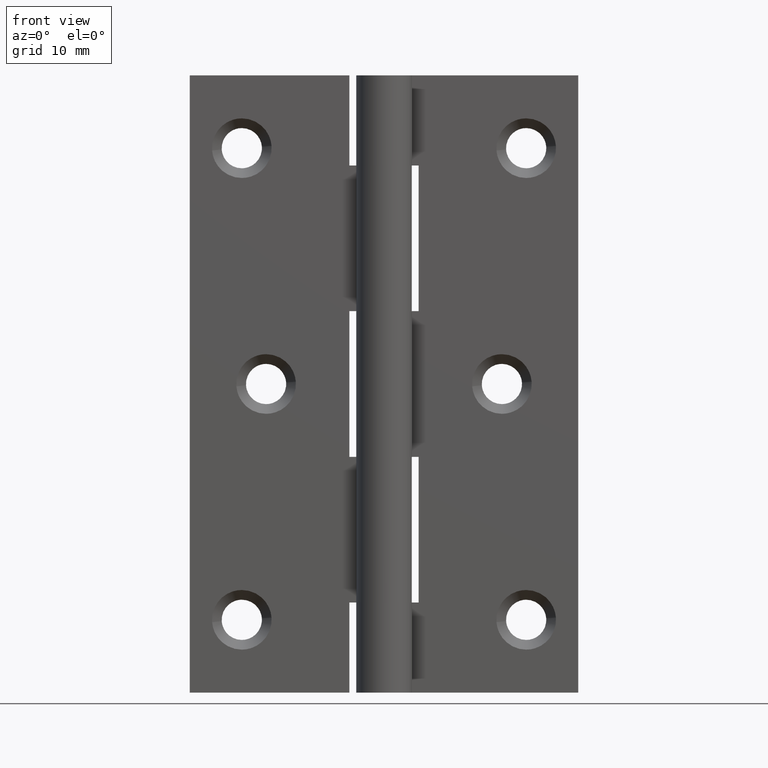
[diagram: clean part render]
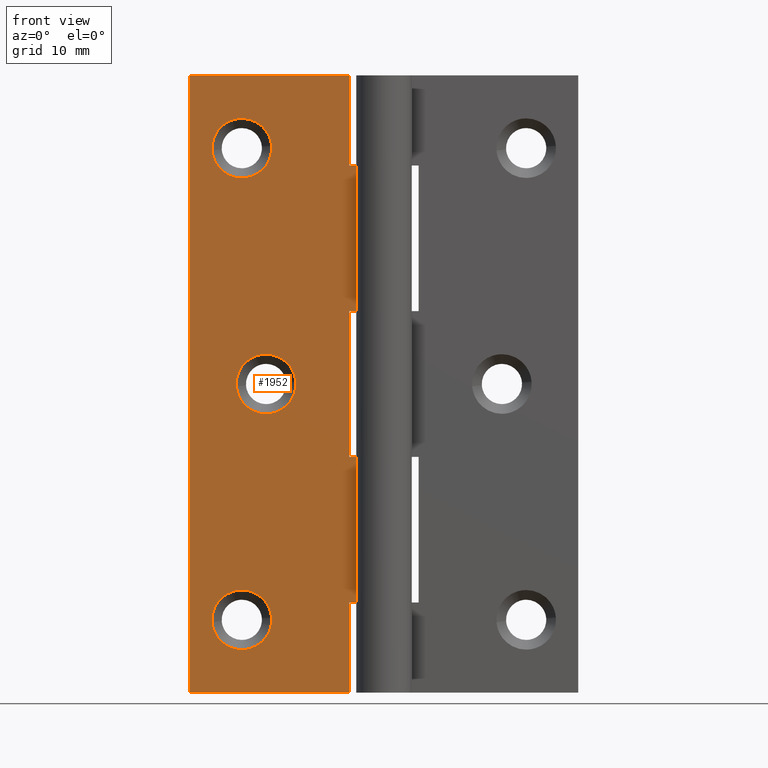
[diagram: same view with one face highlighted and labeled with its STEP entity id]
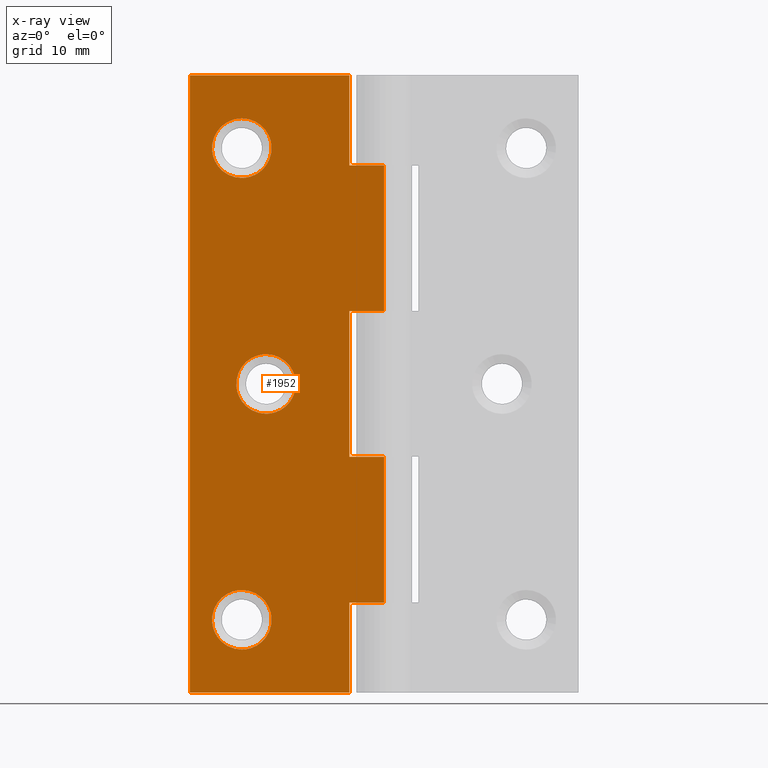
[diagram: x-ray of the same camera — body ghosted, the highlighted face saturated]
A machine part, front view. The second image highlights one B-rep face of the part: STEP entity #1952.
The next image is the same camera in x-ray: the body ghosted, the highlighted face saturated — about 0% of this face is hidden behind the body in this view.
In plain terms, the highlighted face is a freeform B-spline surface patch.
Its self-contained STEP definition (entity closure, byte-faithful):
#515=CARTESIAN_POINT('',(-16.213255453017641,2.499999999884916,78.837382113450772));
#516=VERTEX_POINT('',#515);
#522=CARTESIAN_POINT('',(-20.500000000000000,2.500000000000000,82.800008011920937));
#523=VERTEX_POINT('',#522);
#524=CARTESIAN_POINT('',(-20.500000000000000,2.500000000000000,82.800008011920937));
#525=CARTESIAN_POINT('',(-16.525120876481001,2.500000000000000,82.800008011920937));
#526=CARTESIAN_POINT('',(-16.213255453017638,2.499999999884916,78.837382113450772));
#534=(BOUNDED_CURVE()B_SPLINE_CURVE(2,(#524,#525,#526),.UNSPECIFIED.,.F.,.U.)B_SPLINE_CURVE_WITH_KNOTS((3,3),(0.0,0.236331300562649),.UNSPECIFIED.)CURVE()GEOMETRIC_REPRESENTATION_ITEM()RATIONAL_B_SPLINE_CURVE((1.0,0.723120658687345,0.969723356025484))REPRESENTATION_ITEM(''));
#535=EDGE_CURVE('',#523,#516,#534,.T.);
#537=CARTESIAN_POINT('',(-24.786744546982359,2.499999999884916,78.162633886549202));
#538=VERTEX_POINT('',#537);
#539=CARTESIAN_POINT('',(-24.786744546982359,2.499999999884916,78.162633886549202));
#540=CARTESIAN_POINT('',(-24.800000011920933,2.500000000000000,78.331060538517860));
#541=CARTESIAN_POINT('',(-24.800000011920929,2.500000000000000,78.500007999999994));
#542=CARTESIAN_POINT('',(-24.800000011920929,2.500000000000000,82.800008011920923));
#543=CARTESIAN_POINT('',(-20.500000000000000,2.500000000000000,82.800008011920937));
#551=(BOUNDED_CURVE()B_SPLINE_CURVE(2,(#539,#540,#541,#542,#543),.UNSPECIFIED.,.F.,.U.)B_SPLINE_CURVE_WITH_KNOTS((3,2,3),(0.736331300562649,0.750000000000000,1.0),.UNSPECIFIED.)CURVE()GEOMETRIC_REPRESENTATION_ITEM()RATIONAL_B_SPLINE_CURVE((0.969723356025484,0.983986122499202,1.0,0.707106781186548,1.0))REPRESENTATION_ITEM(''));
#552=EDGE_CURVE('',#538,#523,#551,.T.);
#589=CARTESIAN_POINT('',(-20.500000000000000,2.500000000000000,74.200007988079065));
#590=VERTEX_POINT('',#589);
#591=CARTESIAN_POINT('',(-20.500000000000000,2.500000000000000,74.200007988079065));
#592=CARTESIAN_POINT('',(-24.474879123519010,2.500000000000000,74.200007988079065));
#593=CARTESIAN_POINT('',(-24.786744546982366,2.499999999884915,78.162633886549202));
#601=(BOUNDED_CURVE()B_SPLINE_CURVE(2,(#591,#592,#593),.UNSPECIFIED.,.F.,.U.)B_SPLINE_CURVE_WITH_KNOTS((3,3),(0.500000000000000,0.736331300562649),.UNSPECIFIED.)CURVE()GEOMETRIC_REPRESENTATION_ITEM()RATIONAL_B_SPLINE_CURVE((1.0,0.723120658687345,0.969723356025485))REPRESENTATION_ITEM(''));
#602=EDGE_CURVE('',#590,#538,#601,.T.);
#604=CARTESIAN_POINT('',(-16.213255453017638,2.499999999884916,78.837382113450772));
#605=CARTESIAN_POINT('',(-16.199999988079071,2.500000000000000,78.668955461482128));
#606=CARTESIAN_POINT('',(-16.199999988079071,2.500000000000000,78.500007999999994));
#607=CARTESIAN_POINT('',(-16.199999988079067,2.500000000000000,74.200007988079051));
#608=CARTESIAN_POINT('',(-20.500000000000000,2.500000000000000,74.200007988079065));
#616=(BOUNDED_CURVE()B_SPLINE_CURVE(2,(#604,#605,#606,#607,#608),.UNSPECIFIED.,.F.,.U.)B_SPLINE_CURVE_WITH_KNOTS((3,2,3),(0.236331300562649,0.250000000000000,0.500000000000000),.UNSPECIFIED.)CURVE()GEOMETRIC_REPRESENTATION_ITEM()RATIONAL_B_SPLINE_CURVE((0.969723356025484,0.983986122499202,1.0,0.707106781186548,1.0))REPRESENTATION_ITEM(''));
#617=EDGE_CURVE('',#516,#590,#616,.T.);
#843=CARTESIAN_POINT('',(-12.713255453017640,2.499999999884916,44.837382113450772));
#844=VERTEX_POINT('',#843);
#850=CARTESIAN_POINT('',(-17.0,2.500000000000000,48.800008011920930));
#851=VERTEX_POINT('',#850);
#852=CARTESIAN_POINT('',(-17.0,2.500000000000000,48.800008011920930));
#853=CARTESIAN_POINT('',(-13.025120876480983,2.500000000000000,48.800008011920930));
#854=CARTESIAN_POINT('',(-12.713255453017640,2.499999999884916,44.837382113450779));
#862=(BOUNDED_CURVE()B_SPLINE_CURVE(2,(#852,#853,#854),.UNSPECIFIED.,.F.,.U.)B_SPLINE_CURVE_WITH_KNOTS((3,3),(0.0,0.236331300562649),.UNSPECIFIED.)CURVE()GEOMETRIC_REPRESENTATION_ITEM()RATIONAL_B_SPLINE_CURVE((1.0,0.723120658687345,0.969723356025485))REPRESENTATION_ITEM(''));
#863=EDGE_CURVE('',#851,#844,#862,.T.);
#865=CARTESIAN_POINT('',(-21.286744546982359,2.499999999884917,44.162633886549223));
#866=VERTEX_POINT('',#865);
#867=CARTESIAN_POINT('',(-21.286744546982359,2.499999999884917,44.162633886549223));
#868=CARTESIAN_POINT('',(-21.300000011920933,2.500000000000000,44.331060538517875));
#869=CARTESIAN_POINT('',(-21.300000011920929,2.500000000000000,44.500008000000001));
#870=CARTESIAN_POINT('',(-21.300000011920940,2.500000000000000,48.800008011920923));
#871=CARTESIAN_POINT('',(-17.0,2.500000000000000,48.800008011920930));
#879=(BOUNDED_CURVE()B_SPLINE_CURVE(2,(#867,#868,#869,#870,#871),.UNSPECIFIED.,.F.,.U.)B_SPLINE_CURVE_WITH_KNOTS((3,2,3),(0.736331300562649,0.750000000000000,1.0),.UNSPECIFIED.)CURVE()GEOMETRIC_REPRESENTATION_ITEM()RATIONAL_B_SPLINE_CURVE((0.969723356025484,0.983986122499202,1.0,0.707106781186548,1.0))REPRESENTATION_ITEM(''));
#880=EDGE_CURVE('',#866,#851,#879,.T.);
#917=CARTESIAN_POINT('',(-17.0,2.500000000000000,40.200007988079072));
#918=VERTEX_POINT('',#917);
#919=CARTESIAN_POINT('',(-17.0,2.500000000000000,40.200007988079072));
#920=CARTESIAN_POINT('',(-20.974879123519006,2.500000000000000,40.200007988079079));
#921=CARTESIAN_POINT('',(-21.286744546982366,2.499999999884916,44.162633886549223));
#929=(BOUNDED_CURVE()B_SPLINE_CURVE(2,(#919,#920,#921),.UNSPECIFIED.,.F.,.U.)B_SPLINE_CURVE_WITH_KNOTS((3,3),(0.500000000000000,0.736331300562649),.UNSPECIFIED.)CURVE()GEOMETRIC_REPRESENTATION_ITEM()RATIONAL_B_SPLINE_CURVE((1.0,0.723120658687345,0.969723356025485))REPRESENTATION_ITEM(''));
#930=EDGE_CURVE('',#918,#866,#929,.T.);
#932=CARTESIAN_POINT('',(-12.713255453017634,2.499999999884917,44.837382113450772));
#933=CARTESIAN_POINT('',(-12.699999988079075,2.500000000000000,44.668955461482135));
#934=CARTESIAN_POINT('',(-12.699999988079069,2.500000000000000,44.500008000000001));
#935=CARTESIAN_POINT('',(-12.699999988079069,2.500000000000000,40.200007988079065));
#936=CARTESIAN_POINT('',(-17.0,2.500000000000000,40.200007988079072));
#944=(BOUNDED_CURVE()B_SPLINE_CURVE(2,(#932,#933,#934,#935,#936),.UNSPECIFIED.,.F.,.U.)B_SPLINE_CURVE_WITH_KNOTS((3,2,3),(0.236331300562649,0.250000000000000,0.500000000000000),.UNSPECIFIED.)CURVE()GEOMETRIC_REPRESENTATION_ITEM()RATIONAL_B_SPLINE_CURVE((0.969723356025485,0.983986122499203,1.0,0.707106781186548,1.0))REPRESENTATION_ITEM(''));
#945=EDGE_CURVE('',#844,#918,#944,.T.);
#1171=CARTESIAN_POINT('',(-16.213255453017641,2.499999999884916,10.837374113450780));
#1172=VERTEX_POINT('',#1171);
#1178=CARTESIAN_POINT('',(-20.500000000000000,2.500000000000000,14.800000011920931));
#1179=VERTEX_POINT('',#1178);
#1180=CARTESIAN_POINT('',(-20.500000000000000,2.500000000000000,14.800000011920931));
#1181=CARTESIAN_POINT('',(-16.525120876481001,2.500000000000000,14.800000011920931));
#1182=CARTESIAN_POINT('',(-16.213255453017638,2.499999999884916,10.837374113450780));
#1190=(BOUNDED_CURVE()B_SPLINE_CURVE(2,(#1180,#1181,#1182),.UNSPECIFIED.,.F.,.U.)B_SPLINE_CURVE_WITH_KNOTS((3,3),(0.0,0.236331300562649),.UNSPECIFIED.)CURVE()GEOMETRIC_REPRESENTATION_ITEM()RATIONAL_B_SPLINE_CURVE((1.0,0.723120658687345,0.969723356025484))REPRESENTATION_ITEM(''));
#1191=EDGE_CURVE('',#1179,#1172,#1190,.T.);
#1193=CARTESIAN_POINT('',(-24.786744546982359,2.499999999884915,10.162625886549220));
#1194=VERTEX_POINT('',#1193);
#1195=CARTESIAN_POINT('',(-24.786744546982366,2.499999999884915,10.162625886549224));
#1196=CARTESIAN_POINT('',(-24.800000011920933,2.500000000000000,10.331052538517870));
#1197=CARTESIAN_POINT('',(-24.800000011920929,2.500000000000000,10.500000000000000));
#1198=CARTESIAN_POINT('',(-24.800000011920929,2.500000000000000,14.800000011920924));
#1199=CARTESIAN_POINT('',(-20.500000000000000,2.500000000000000,14.800000011920931));
#1207=(BOUNDED_CURVE()B_SPLINE_CURVE(2,(#1195,#1196,#1197,#1198,#1199),.UNSPECIFIED.,.F.,.U.)B_SPLINE_CURVE_WITH_KNOTS((3,2,3),(0.736331300562649,0.750000000000000,1.0),.UNSPECIFIED.)CURVE()GEOMETRIC_REPRESENTATION_ITEM()RATIONAL_B_SPLINE_CURVE((0.969723356025485,0.983986122499202,1.0,0.707106781186548,1.0))REPRESENTATION_ITEM(''));
#1208=EDGE_CURVE('',#1194,#1179,#1207,.T.);
#1245=CARTESIAN_POINT('',(-20.500000000000000,2.500000000000000,6.199999988079070));
#1246=VERTEX_POINT('',#1245);
#1247=CARTESIAN_POINT('',(-20.500000000000000,2.500000000000000,6.199999988079070));
#1248=CARTESIAN_POINT('',(-24.474879123519010,2.500000000000000,6.199999988079071));
#1249=CARTESIAN_POINT('',(-24.786744546982366,2.499999999884915,10.162625886549224));
#1257=(BOUNDED_CURVE()B_SPLINE_CURVE(2,(#1247,#1248,#1249),.UNSPECIFIED.,.F.,.U.)B_SPLINE_CURVE_WITH_KNOTS((3,3),(0.500000000000000,0.736331300562649),.UNSPECIFIED.)CURVE()GEOMETRIC_REPRESENTATION_ITEM()RATIONAL_B_SPLINE_CURVE((1.0,0.723120658687345,0.969723356025485))REPRESENTATION_ITEM(''));
#1258=EDGE_CURVE('',#1246,#1194,#1257,.T.);
#1260=CARTESIAN_POINT('',(-16.213255453017638,2.499999999884916,10.837374113450780));
#1261=CARTESIAN_POINT('',(-16.199999988079071,2.500000000000000,10.668947461482130));
#1262=CARTESIAN_POINT('',(-16.199999988079071,2.500000000000000,10.500000000000000));
#1263=CARTESIAN_POINT('',(-16.199999988079067,2.500000000000000,6.199999988079070));
#1264=CARTESIAN_POINT('',(-20.500000000000000,2.500000000000000,6.199999988079070));
#1272=(BOUNDED_CURVE()B_SPLINE_CURVE(2,(#1260,#1261,#1262,#1263,#1264),.UNSPECIFIED.,.F.,.U.)B_SPLINE_CURVE_WITH_KNOTS((3,2,3),(0.236331300562649,0.250000000000000,0.500000000000000),.UNSPECIFIED.)CURVE()GEOMETRIC_REPRESENTATION_ITEM()RATIONAL_B_SPLINE_CURVE((0.969723356025484,0.983986122499202,1.0,0.707106781186548,1.0))REPRESENTATION_ITEM(''));
#1273=EDGE_CURVE('',#1172,#1246,#1272,.T.);
#1284=CARTESIAN_POINT('',(-5.0,2.499999999999945,89.000008000000008));
#1285=VERTEX_POINT('',#1284);
#1286=CARTESIAN_POINT('',(-5.0,2.499999999999945,76.000007999999994));
#1287=VERTEX_POINT('',#1286);
#1288=CARTESIAN_POINT('',(-5.0,2.499999999999945,89.000008000000008));
#1289=CARTESIAN_POINT('',(-5.0,2.499999999999945,76.000007999999994));
#1290=QUASI_UNIFORM_CURVE('',1,(#1288,#1289),.UNSPECIFIED.,.F.,.U.);
#1291=EDGE_CURVE('',#1285,#1287,#1290,.T.);
#1349=CARTESIAN_POINT('',(6.814413E-015,2.500000000000000,76.000008000000093));
#1350=VERTEX_POINT('',#1349);
#1351=CARTESIAN_POINT('',(-5.0,2.499999999999945,76.000007999999994));
#1352=CARTESIAN_POINT('',(6.814413E-015,2.500000000000000,76.000008000000093));
#1353=QUASI_UNIFORM_CURVE('',1,(#1351,#1352),.UNSPECIFIED.,.F.,.U.);
#1354=EDGE_CURVE('',#1287,#1350,#1353,.T.);
#1399=CARTESIAN_POINT('',(-5.0,2.500000000000000,34.000008000000037));
#1400=VERTEX_POINT('',#1399);
#1406=CARTESIAN_POINT('',(6.814413E-015,2.500000000000000,34.000008000000037));
#1407=VERTEX_POINT('',#1406);
#1408=CARTESIAN_POINT('',(6.814413E-015,2.500000000000000,34.000008000000037));
#1409=CARTESIAN_POINT('',(-5.0,2.500000000000000,34.000008000000037));
#1410=QUASI_UNIFORM_CURVE('',1,(#1408,#1409),.UNSPECIFIED.,.F.,.U.);
#1411=EDGE_CURVE('',#1407,#1400,#1410,.T.);
#1476=CARTESIAN_POINT('',(-5.0,2.499999999999945,55.000008000000001));
#1477=VERTEX_POINT('',#1476);
#1483=CARTESIAN_POINT('',(-5.0,2.500000000000000,34.000008000000037));
#1484=CARTESIAN_POINT('',(-5.0,2.499999999999945,55.000008000000001));
#1485=QUASI_UNIFORM_CURVE('',1,(#1483,#1484),.UNSPECIFIED.,.F.,.U.);
#1486=EDGE_CURVE('',#1400,#1477,#1485,.T.);
#1526=CARTESIAN_POINT('',(6.814413E-015,2.500000000000000,55.000008000000001));
#1527=VERTEX_POINT('',#1526);
#1547=CARTESIAN_POINT('',(-5.0,2.499999999999945,55.000008000000001));
#1548=CARTESIAN_POINT('',(6.814413E-015,2.500000000000000,55.000008000000001));
#1549=QUASI_UNIFORM_CURVE('',1,(#1547,#1548),.UNSPECIFIED.,.F.,.U.);
#1550=EDGE_CURVE('',#1477,#1527,#1549,.T.);
#1566=CARTESIAN_POINT('',(-5.0,2.499999999999945,13.0));
#1567=VERTEX_POINT('',#1566);
#1568=CARTESIAN_POINT('',(-5.0,2.500000000000000,0.0));
#1569=VERTEX_POINT('',#1568);
#1570=CARTESIAN_POINT('',(-5.0,2.499999999999945,13.0));
#1571=CARTESIAN_POINT('',(-5.0,2.500000000000000,0.0));
#1572=QUASI_UNIFORM_CURVE('',1,(#1570,#1571),.UNSPECIFIED.,.F.,.U.);
#1573=EDGE_CURVE('',#1567,#1569,#1572,.T.);
#1632=CARTESIAN_POINT('',(6.814413E-015,2.500000000000000,13.0));
#1633=VERTEX_POINT('',#1632);
#1653=CARTESIAN_POINT('',(6.814413E-015,2.500000000000000,13.0));
#1654=CARTESIAN_POINT('',(-5.0,2.499999999999945,13.0));
#1655=QUASI_UNIFORM_CURVE('',1,(#1653,#1654),.UNSPECIFIED.,.F.,.U.);
#1656=EDGE_CURVE('',#1633,#1567,#1655,.T.);
#1672=CARTESIAN_POINT('',(-28.0,2.500000000000000,89.000008000000008));
#1673=VERTEX_POINT('',#1672);
#1688=CARTESIAN_POINT('',(-28.0,2.500000000000000,0.0));
#1689=VERTEX_POINT('',#1688);
#1695=CARTESIAN_POINT('',(-28.0,2.500000000000000,0.0));
#1696=CARTESIAN_POINT('',(-28.0,2.500000000000000,89.000008000000008));
#1697=QUASI_UNIFORM_CURVE('',1,(#1695,#1696),.UNSPECIFIED.,.F.,.U.);
#1698=EDGE_CURVE('',#1689,#1673,#1697,.T.);
#1714=CARTESIAN_POINT('',(-5.0,2.500000000000000,0.0));
#1715=CARTESIAN_POINT('',(-28.0,2.500000000000000,0.0));
#1716=QUASI_UNIFORM_CURVE('',1,(#1714,#1715),.UNSPECIFIED.,.F.,.U.);
#1717=EDGE_CURVE('',#1569,#1689,#1716,.T.);
#1746=CARTESIAN_POINT('',(6.814413E-015,2.500000000000000,13.0));
#1747=CARTESIAN_POINT('',(6.814413E-015,2.500000000000000,34.000008000000037));
#1748=QUASI_UNIFORM_CURVE('',1,(#1746,#1747),.UNSPECIFIED.,.F.,.U.);
#1749=EDGE_CURVE('',#1633,#1407,#1748,.T.);
#1821=CARTESIAN_POINT('',(-5.0,2.499999999999945,89.000008000000008));
#1822=CARTESIAN_POINT('',(-28.0,2.500000000000000,89.000008000000008));
#1823=QUASI_UNIFORM_CURVE('',1,(#1821,#1822),.UNSPECIFIED.,.F.,.U.);
#1824=EDGE_CURVE('',#1285,#1673,#1823,.T.);
#1894=CARTESIAN_POINT('',(6.814413E-015,2.500000000000000,55.000008000000001));
#1895=CARTESIAN_POINT('',(6.814413E-015,2.500000000000000,76.000008000000093));
#1896=QUASI_UNIFORM_CURVE('',1,(#1894,#1895),.UNSPECIFIED.,.F.,.U.);
#1897=EDGE_CURVE('',#1527,#1350,#1896,.T.);
#1915=CARTESIAN_POINT('',(-29.398599945730570,2.500000000000000,-4.445550227100718));
#1916=CARTESIAN_POINT('',(-29.398599945730570,2.500000000000000,93.445560614266952));
#1917=CARTESIAN_POINT('',(1.398600696749098,2.500000000000000,-4.445550227100718));
#1918=CARTESIAN_POINT('',(1.398600696749098,2.500000000000000,93.445560614266952));
#1919=B_SPLINE_SURFACE_WITH_KNOTS('',1,1,((#1915,#1917),(#1916,#1918)),.UNSPECIFIED.,.F.,.F.,.U.,(2,2),(2,2),(0.0,97.891110841367663),(0.0,30.797200642479670),.UNSPECIFIED.);
#1920=ORIENTED_EDGE('',*,*,#1291,.F.);
#1921=ORIENTED_EDGE('',*,*,#1824,.T.);
#1922=ORIENTED_EDGE('',*,*,#1698,.F.);
#1923=ORIENTED_EDGE('',*,*,#1717,.F.);
#1924=ORIENTED_EDGE('',*,*,#1573,.F.);
#1925=ORIENTED_EDGE('',*,*,#1656,.F.);
#1926=ORIENTED_EDGE('',*,*,#1749,.T.);
#1927=ORIENTED_EDGE('',*,*,#1411,.T.);
#1928=ORIENTED_EDGE('',*,*,#1486,.T.);
#1929=ORIENTED_EDGE('',*,*,#1550,.T.);
#1930=ORIENTED_EDGE('',*,*,#1897,.T.);
#1931=ORIENTED_EDGE('',*,*,#1354,.F.);
#1932=EDGE_LOOP('',(#1920,#1921,#1922,#1923,#1924,#1925,#1926,#1927,#1928,#1929,#1930,#1931));
#1933=FACE_OUTER_BOUND('',#1932,.T.);
#1934=ORIENTED_EDGE('',*,*,#1258,.T.);
#1935=ORIENTED_EDGE('',*,*,#1208,.T.);
#1936=ORIENTED_EDGE('',*,*,#1191,.T.);
#1937=ORIENTED_EDGE('',*,*,#1273,.T.);
#1938=EDGE_LOOP('',(#1934,#1935,#1936,#1937));
#1939=FACE_BOUND('',#1938,.T.);
#1940=ORIENTED_EDGE('',*,*,#930,.T.);
#1941=ORIENTED_EDGE('',*,*,#880,.T.);
#1942=ORIENTED_EDGE('',*,*,#863,.T.);
#1943=ORIENTED_EDGE('',*,*,#945,.T.);
#1944=EDGE_LOOP('',(#1940,#1941,#1942,#1943));
#1945=FACE_BOUND('',#1944,.T.);
#1946=ORIENTED_EDGE('',*,*,#602,.T.);
#1947=ORIENTED_EDGE('',*,*,#552,.T.);
#1948=ORIENTED_EDGE('',*,*,#535,.T.);
#1949=ORIENTED_EDGE('',*,*,#617,.T.);
#1950=EDGE_LOOP('',(#1946,#1947,#1948,#1949));
#1951=FACE_BOUND('',#1950,.T.);
#1952=ADVANCED_FACE('',(#1933,#1939,#1945,#1951),#1919,.F.);